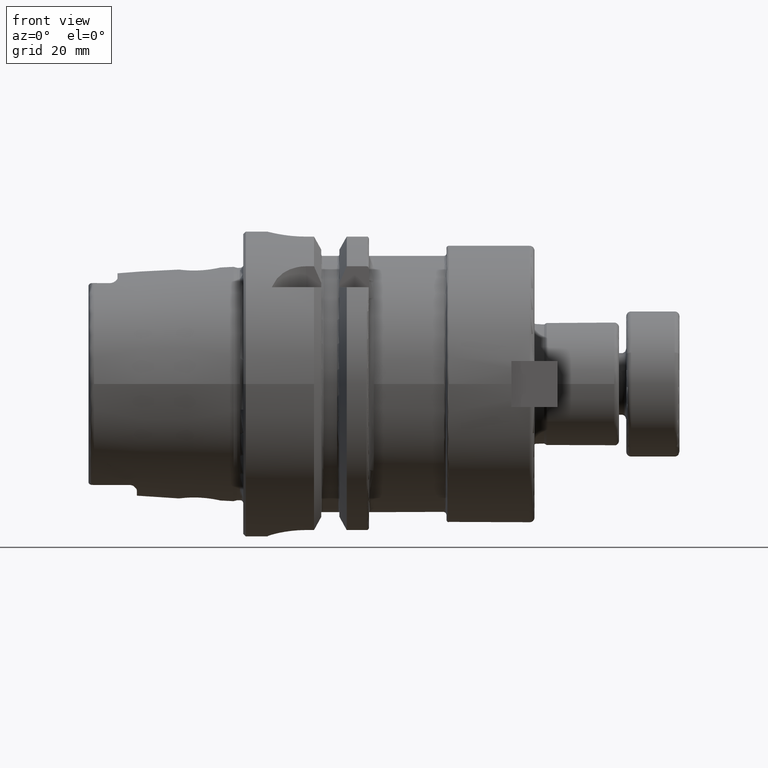
[diagram: clean part render]
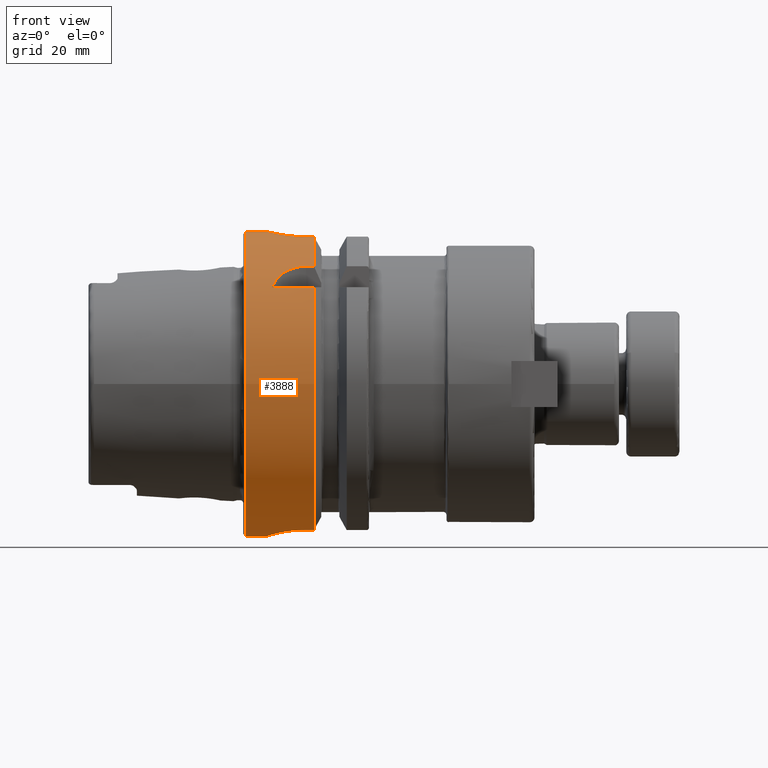
[diagram: same view with one face highlighted and labeled with its STEP entity id]
A machine part, front view. The second image highlights one B-rep face of the part: STEP entity #3888.
In plain terms, the highlighted cylindrical surface (bore or boss wall) has radius 31.5 mm, axis along (1, 0, 0).
Its self-contained STEP definition (entity closure, byte-faithful):
#632=FACE_BOUND('',#1289,.T.);
#676=CYLINDRICAL_SURFACE('',#4382,31.5);
#792=CIRCLE('',#4325,31.5);
#793=CIRCLE('',#4326,31.5);
#801=CIRCLE('',#4346,31.5);
#802=CIRCLE('',#4348,31.5);
#816=CIRCLE('',#4383,31.5);
#817=CIRCLE('',#4384,31.5);
#1077=FACE_OUTER_BOUND('',#1288,.T.);
#1288=EDGE_LOOP('',(#3283,#3284,#3285,#3286,#3287,#3288,#3289,#3290,#3291,
#3292,#3293,#3294,#3295,#3296,#3297,#3298,#3299,#3300));
#1289=EDGE_LOOP('',(#3301,#3302));
#1475=LINE('',#7105,#1676);
#1480=LINE('',#7150,#1681);
#1498=LINE('',#7327,#1699);
#1499=LINE('',#7331,#1700);
#1511=LINE('',#7494,#1712);
#1514=LINE('',#7524,#1715);
#1516=LINE('',#7530,#1717);
#1676=VECTOR('',#5072,10.);
#1681=VECTOR('',#5083,10.);
#1699=VECTOR('',#5147,10.);
#1700=VECTOR('',#5150,10.);
#1712=VECTOR('',#5228,10.);
#1715=VECTOR('',#5239,10.);
#1717=VECTOR('',#5247,31.5);
#1824=B_SPLINE_CURVE_WITH_KNOTS('',3,(#7038,#7039,#7040,#7041,#7042,#7043,
#7044,#7045,#7046,#7047,#7048,#7049,#7050,#7051,#7052,#7053,#7054,#7055,
#7056,#7057,#7058,#7059,#7060,#7061,#7062,#7063),.UNSPECIFIED.,.F.,.F.,
(4,2,2,2,2,2,2,2,2,2,2,2,4),(0.,0.188688694287612,0.377377388575223,0.56606194688798,
0.754746505200737,0.943431063513494,1.13211562182625,1.32080431611386,1.50949301040147,
1.69818170468909,1.8868703989767,2.07555495728945,2.26423951560221),
 .UNSPECIFIED.);
#1825=B_SPLINE_CURVE_WITH_KNOTS('',3,(#7064,#7065,#7066,#7067,#7068,#7069,
#7070,#7071,#7072,#7073),.UNSPECIFIED.,.F.,.F.,(4,2,2,2,4),(2.26423951560221,
2.45292407391497,2.64160863222773,2.83029732651534,3.01898602080295),
 .UNSPECIFIED.);
#1828=B_SPLINE_CURVE_WITH_KNOTS('',3,(#7130,#7131,#7132,#7133,#7134,#7135,
#7136,#7137,#7138,#7139,#7140,#7141),.UNSPECIFIED.,.F.,.F.,(4,2,2,2,2,4),
(1.1085154204615,1.31979218709236,1.52798350480179,1.73617482251122,1.90421770126337,
2.07226058001552),.UNSPECIFIED.);
#1838=B_SPLINE_CURVE_WITH_KNOTS('',3,(#7310,#7311,#7312,#7313,#7314,#7315,
#7316,#7317,#7318,#7319),.UNSPECIFIED.,.F.,.F.,(4,2,2,2,4),(1.20927420824097,
1.5131742975437,1.81707438684643,2.12000449915965,2.42293461147287),
 .UNSPECIFIED.);
#1841=B_SPLINE_CURVE_WITH_KNOTS('',3,(#7345,#7346,#7347,#7348,#7349,#7350,
#7351,#7352,#7353,#7354),.UNSPECIFIED.,.F.,.F.,(4,2,2,2,4),(0.,0.30293011231322,
0.605860224626439,0.90976031392917,1.2136604032319),.UNSPECIFIED.);
#1851=B_SPLINE_CURVE_WITH_KNOTS('',3,(#7500,#7501,#7502,#7503,#7504,#7505,
#7506,#7507,#7508,#7509,#7510,#7511,#7512,#7513,#7514,#7515,#7516,#7517),
 .UNSPECIFIED.,.F.,.F.,(4,2,2,2,2,2,2,2,4),(0.,0.302805879979318,0.605611759958635,
0.908372461246501,1.21113316253437,1.51389386382223,1.8166545651101,2.11946044508942,
2.42226632506874),.UNSPECIFIED.);
#2012=VERTEX_POINT('',#7035);
#2013=VERTEX_POINT('',#7037);
#2021=VERTEX_POINT('',#7102);
#2022=VERTEX_POINT('',#7104);
#2026=VERTEX_POINT('',#7129);
#2028=VERTEX_POINT('',#7146);
#2033=VERTEX_POINT('',#7162);
#2034=VERTEX_POINT('',#7164);
#2059=VERTEX_POINT('',#7308);
#2060=VERTEX_POINT('',#7309);
#2061=VERTEX_POINT('',#7329);
#2062=VERTEX_POINT('',#7330);
#2065=VERTEX_POINT('',#7344);
#2066=VERTEX_POINT('',#7359);
#2082=VERTEX_POINT('',#7491);
#2083=VERTEX_POINT('',#7493);
#2084=VERTEX_POINT('',#7499);
#2086=VERTEX_POINT('',#7529);
#2403=EDGE_CURVE('',#2013,#2012,#1824,.T.);
#2404=EDGE_CURVE('',#2012,#2013,#1825,.T.);
#2413=EDGE_CURVE('',#2022,#2021,#1475,.T.);
#2419=EDGE_CURVE('',#2021,#2026,#1828,.T.);
#2423=EDGE_CURVE('',#2026,#2028,#1480,.T.);
#2429=EDGE_CURVE('',#2022,#2033,#792,.T.);
#2430=EDGE_CURVE('',#2033,#2034,#793,.T.);
#2464=EDGE_CURVE('',#2059,#2060,#1838,.T.);
#2468=EDGE_CURVE('',#2060,#2034,#1498,.T.);
#2469=EDGE_CURVE('',#2061,#2062,#1499,.T.);
#2474=EDGE_CURVE('',#2062,#2065,#1841,.T.);
#2476=EDGE_CURVE('',#2065,#2059,#801,.T.);
#2477=EDGE_CURVE('',#2061,#2066,#802,.T.);
#2509=EDGE_CURVE('',#2083,#2082,#1511,.T.);
#2511=EDGE_CURVE('',#2082,#2084,#1851,.T.);
#2515=EDGE_CURVE('',#2084,#2066,#1514,.T.);
#2517=EDGE_CURVE('',#2083,#2028,#816,.T.);
#2518=EDGE_CURVE('',#2033,#2086,#1516,.T.);
#2519=EDGE_CURVE('',#2086,#2086,#817,.T.);
#3283=ORIENTED_EDGE('',*,*,#2423,.T.);
#3284=ORIENTED_EDGE('',*,*,#2517,.F.);
#3285=ORIENTED_EDGE('',*,*,#2509,.T.);
#3286=ORIENTED_EDGE('',*,*,#2511,.T.);
#3287=ORIENTED_EDGE('',*,*,#2515,.T.);
#3288=ORIENTED_EDGE('',*,*,#2477,.F.);
#3289=ORIENTED_EDGE('',*,*,#2469,.T.);
#3290=ORIENTED_EDGE('',*,*,#2474,.T.);
#3291=ORIENTED_EDGE('',*,*,#2476,.T.);
#3292=ORIENTED_EDGE('',*,*,#2464,.T.);
#3293=ORIENTED_EDGE('',*,*,#2468,.T.);
#3294=ORIENTED_EDGE('',*,*,#2430,.F.);
#3295=ORIENTED_EDGE('',*,*,#2518,.T.);
#3296=ORIENTED_EDGE('',*,*,#2519,.T.);
#3297=ORIENTED_EDGE('',*,*,#2518,.F.);
#3298=ORIENTED_EDGE('',*,*,#2429,.F.);
#3299=ORIENTED_EDGE('',*,*,#2413,.T.);
#3300=ORIENTED_EDGE('',*,*,#2419,.T.);
#3301=ORIENTED_EDGE('',*,*,#2403,.T.);
#3302=ORIENTED_EDGE('',*,*,#2404,.T.);
#3888=ADVANCED_FACE('',(#1077,#632),#676,.T.);
#4325=AXIS2_PLACEMENT_3D('',#7163,#5096,#5097);
#4326=AXIS2_PLACEMENT_3D('',#7165,#5098,#5099);
#4346=AXIS2_PLACEMENT_3D('',#7357,#5158,#5159);
#4348=AXIS2_PLACEMENT_3D('',#7360,#5162,#5163);
#4382=AXIS2_PLACEMENT_3D('',#7527,#5243,#5244);
#4383=AXIS2_PLACEMENT_3D('',#7528,#5245,#5246);
#4384=AXIS2_PLACEMENT_3D('',#7531,#5248,#5249);
#5072=DIRECTION('',(-1.,0.,0.));
#5083=DIRECTION('',(1.,0.,0.));
#5096=DIRECTION('center_axis',(1.,0.,0.));
#5097=DIRECTION('ref_axis',(0.,0.,-1.));
#5098=DIRECTION('center_axis',(1.,0.,0.));
#5099=DIRECTION('ref_axis',(0.,0.,-1.));
#5147=DIRECTION('',(1.,0.,0.));
#5150=DIRECTION('',(-1.,0.,0.));
#5158=DIRECTION('center_axis',(-1.,0.,0.));
#5159=DIRECTION('ref_axis',(0.,1.,0.));
#5162=DIRECTION('center_axis',(1.,0.,0.));
#5163=DIRECTION('ref_axis',(0.,0.,-1.));
#5228=DIRECTION('',(-1.,0.,0.));
#5239=DIRECTION('',(1.,0.,0.));
#5243=DIRECTION('center_axis',(1.,0.,0.));
#5244=DIRECTION('ref_axis',(0.,1.,0.));
#5245=DIRECTION('center_axis',(1.,0.,0.));
#5246=DIRECTION('ref_axis',(0.,0.,-1.));
#5247=DIRECTION('',(-1.,0.,0.));
#5248=DIRECTION('center_axis',(1.,0.,0.));
#5249=DIRECTION('ref_axis',(0.,0.,-1.));
#7035=CARTESIAN_POINT('',(12.,31.5,-6.12323399573677E-16));
#7037=CARTESIAN_POINT('',(7.,31.100643080168,5.));
#7038=CARTESIAN_POINT('Ctrl Pts',(7.,31.100643080168,5.));
#7039=CARTESIAN_POINT('Ctrl Pts',(6.37103768570796,31.100643080168,5.));
#7040=CARTESIAN_POINT('Ctrl Pts',(5.70089281579202,31.1216953112949,4.87408354368814));
#7041=CARTESIAN_POINT('Ctrl Pts',(4.46931934300962,31.1973810209855,4.36348784122736));
#7042=CARTESIAN_POINT('Ctrl Pts',(3.90779781350673,31.2508828501623,3.97886562537221));
#7043=CARTESIAN_POINT('Ctrl Pts',(3.021144092268,31.3510329557602,3.09221190413348));
#7044=CARTESIAN_POINT('Ctrl Pts',(2.63651425348544,31.4042391414288,2.5306861925578));
#7045=CARTESIAN_POINT('Ctrl Pts',(2.12591301120586,31.4792463697936,1.29909839144709));
#7046=CARTESIAN_POINT('Ctrl Pts',(2.,31.5,0.62894852770919));
#7047=CARTESIAN_POINT('Ctrl Pts',(2.,31.5,-0.62894852770919));
#7048=CARTESIAN_POINT('Ctrl Pts',(2.12591301120586,31.4792463697936,-1.29909839144709));
#7049=CARTESIAN_POINT('Ctrl Pts',(2.63651425348544,31.4042391414288,-2.5306861925578));
#7050=CARTESIAN_POINT('Ctrl Pts',(3.021144092268,31.3510329557602,-3.09221190413348));
#7051=CARTESIAN_POINT('Ctrl Pts',(3.90779781350673,31.2508828501623,-3.97886562537221));
#7052=CARTESIAN_POINT('Ctrl Pts',(4.46931934300962,31.1973810209855,-4.36348784122736));
#7053=CARTESIAN_POINT('Ctrl Pts',(5.70089281579202,31.1216953112949,-4.87408354368814));
#7054=CARTESIAN_POINT('Ctrl Pts',(6.37103768570796,31.100643080168,-5.));
#7055=CARTESIAN_POINT('Ctrl Pts',(7.62896231429204,31.100643080168,-5.));
#7056=CARTESIAN_POINT('Ctrl Pts',(8.29910718420798,31.1216953112949,-4.87408354368814));
#7057=CARTESIAN_POINT('Ctrl Pts',(9.53068065699038,31.1973810209855,-4.36348784122736));
#7058=CARTESIAN_POINT('Ctrl Pts',(10.0922021864933,31.2508828501623,-3.97886562537221));
#7059=CARTESIAN_POINT('Ctrl Pts',(10.978855907732,31.3510329557602,-3.09221190413348));
#7060=CARTESIAN_POINT('Ctrl Pts',(11.3634857465146,31.4042391414288,-2.53068619255779));
#7061=CARTESIAN_POINT('Ctrl Pts',(11.8740869887941,31.4792463697936,-1.29909839144708));
#7062=CARTESIAN_POINT('Ctrl Pts',(12.,31.5,-0.62894852770919));
#7063=CARTESIAN_POINT('Ctrl Pts',(12.,31.5,-4.16333634234434E-16));
#7064=CARTESIAN_POINT('Ctrl Pts',(12.,31.5,-1.11022302462516E-15));
#7065=CARTESIAN_POINT('Ctrl Pts',(12.,31.5,0.628948527709188));
#7066=CARTESIAN_POINT('Ctrl Pts',(11.8740869887941,31.4792463697936,1.29909839144708));
#7067=CARTESIAN_POINT('Ctrl Pts',(11.3634857465146,31.4042391414288,2.53068619255779));
#7068=CARTESIAN_POINT('Ctrl Pts',(10.978855907732,31.3510329557602,3.09221190413348));
#7069=CARTESIAN_POINT('Ctrl Pts',(10.0922021864933,31.2508828501623,3.97886562537221));
#7070=CARTESIAN_POINT('Ctrl Pts',(9.53068065699038,31.1973810209855,4.36348784122736));
#7071=CARTESIAN_POINT('Ctrl Pts',(8.29910718420798,31.1216953112949,4.87408354368814));
#7072=CARTESIAN_POINT('Ctrl Pts',(7.62896231429204,31.100643080168,5.));
#7073=CARTESIAN_POINT('Ctrl Pts',(7.,31.100643080168,5.));
#7102=CARTESIAN_POINT('',(5.88828609634419,-24.3361870472759,20.));
#7104=CARTESIAN_POINT('',(14.6225009252407,-24.3361870472759,20.));
#7105=CARTESIAN_POINT('',(7.56125046262034,-24.3361870472759,20.));
#7129=CARTESIAN_POINT('',(13.,-20.,24.3361870472759));
#7130=CARTESIAN_POINT('Ctrl Pts',(5.88828609634419,-24.3361870472759,20.));
#7131=CARTESIAN_POINT('Ctrl Pts',(6.11069532820048,-23.9044753723342,20.5253108035937));
#7132=CARTESIAN_POINT('Ctrl Pts',(6.38325999044306,-23.4713523250807,21.0173865932788));
#7133=CARTESIAN_POINT('Ctrl Pts',(7.044898076458,-22.6317364276543,21.9186738868096));
#7134=CARTESIAN_POINT('Ctrl Pts',(7.46714468561685,-22.1861072682036,22.3682920878559));
#7135=CARTESIAN_POINT('Ctrl Pts',(8.46725531403812,-21.3767026700071,23.143042657319));
#7136=CARTESIAN_POINT('Ctrl Pts',(9.04646427720221,-21.0147449478223,23.4683362269255));
#7137=CARTESIAN_POINT('Ctrl Pts',(10.1145001432702,-20.5200081116516,23.9011603796022));
#7138=CARTESIAN_POINT('Ctrl Pts',(10.670823971716,-20.3234249831704,24.0673462447194));
#7139=CARTESIAN_POINT('Ctrl Pts',(11.8334528721306,-20.063121855676,24.2847667849476));
#7140=CARTESIAN_POINT('Ctrl Pts',(12.4398570708262,-20.,24.3361870472759));
#7141=CARTESIAN_POINT('Ctrl Pts',(13.,-20.,24.3361870472759));
#7146=CARTESIAN_POINT('',(14.6225009252407,-20.,24.3361870472759));
#7150=CARTESIAN_POINT('',(7.56125046262035,-20.,24.3361870472759));
#7162=CARTESIAN_POINT('',(14.6225009252407,-31.5,-3.85763741731416E-15));
#7163=CARTESIAN_POINT('Origin',(14.6225009252407,0.,0.));
#7164=CARTESIAN_POINT('',(14.6225009252407,-9.,-30.1869176962472));
#7165=CARTESIAN_POINT('Origin',(14.6225009252407,0.,0.));
#7308=CARTESIAN_POINT('',(5.,-0.999999999999999,-31.4841229828623));
#7309=CARTESIAN_POINT('',(13.,-9.,-30.1869176962472));
#7310=CARTESIAN_POINT('Ctrl Pts',(5.,-0.999999999999997,-31.4841229828623));
#7311=CARTESIAN_POINT('Ctrl Pts',(5.,-2.01248971281587,-31.4519642432536));
#7312=CARTESIAN_POINT('Ctrl Pts',(5.2037733306458,-3.08756640398171,-31.3640631381934));
#7313=CARTESIAN_POINT('Ctrl Pts',(6.02370102555041,-5.05836608044729,-31.1070804719497));
#7314=CARTESIAN_POINT('Ctrl Pts',(6.63955745341062,-5.95454409907418,-30.9405445582004));
#7315=CARTESIAN_POINT('Ctrl Pts',(8.05472493283182,-7.36715009628369,-30.6348764237341));
#7316=CARTESIAN_POINT('Ctrl Pts',(8.9496642215883,-7.98063403850821,-30.4752177477269));
#7317=CARTESIAN_POINT('Ctrl Pts',(10.9171740660538,-8.79719825889174,-30.2496070227108));
#7318=CARTESIAN_POINT('Ctrl Pts',(11.9902329589559,-9.,-30.1869176962472));
#7319=CARTESIAN_POINT('Ctrl Pts',(13.,-9.,-30.1869176962472));
#7327=CARTESIAN_POINT('',(7.56125046262035,-8.99999999999999,-30.1869176962472));
#7329=CARTESIAN_POINT('',(14.6225009252407,9.,-30.1869176962472));
#7330=CARTESIAN_POINT('',(13.,9.00000000000001,-30.1869176962472));
#7331=CARTESIAN_POINT('',(7.56125046262034,9.00000000000001,-30.1869176962472));
#7344=CARTESIAN_POINT('',(5.,1.,-31.4841229828623));
#7345=CARTESIAN_POINT('Ctrl Pts',(13.,9.00000000000001,-30.1869176962472));
#7346=CARTESIAN_POINT('Ctrl Pts',(11.9902329589559,9.00000000000001,-30.1869176962472));
#7347=CARTESIAN_POINT('Ctrl Pts',(10.9171740660538,8.79719825889175,-30.2496070227108));
#7348=CARTESIAN_POINT('Ctrl Pts',(8.9496642215883,7.98063403850822,-30.4752177477269));
#7349=CARTESIAN_POINT('Ctrl Pts',(8.05472493283182,7.3671500962837,-30.6348764237341));
#7350=CARTESIAN_POINT('Ctrl Pts',(6.63955745341061,5.95454409907419,-30.9405445582004));
#7351=CARTESIAN_POINT('Ctrl Pts',(6.02370102555041,5.0583660804473,-31.1070804719497));
#7352=CARTESIAN_POINT('Ctrl Pts',(5.2037733306458,3.08756640398172,-31.3640631381934));
#7353=CARTESIAN_POINT('Ctrl Pts',(5.,2.01248971281588,-31.4519642432536));
#7354=CARTESIAN_POINT('Ctrl Pts',(5.,1.00000000000001,-31.4841229828623));
#7357=CARTESIAN_POINT('Origin',(5.,0.,0.));
#7359=CARTESIAN_POINT('',(14.6225009252407,8.,30.4671954731642));
#7360=CARTESIAN_POINT('Origin',(14.6225009252407,0.,0.));
#7491=CARTESIAN_POINT('',(13.,-8.,30.4671954731642));
#7493=CARTESIAN_POINT('',(14.6225009252407,-8.,30.4671954731642));
#7494=CARTESIAN_POINT('',(7.56125046262034,-8.,30.4671954731642));
#7499=CARTESIAN_POINT('',(13.,8.,30.4671954731642));
#7500=CARTESIAN_POINT('Ctrl Pts',(13.,-8.,30.4671954731643));
#7501=CARTESIAN_POINT('Ctrl Pts',(11.9906470667356,-8.,30.4671954731643));
#7502=CARTESIAN_POINT('Ctrl Pts',(10.9172075930168,-7.79737202490167,30.5225803085525));
#7503=CARTESIAN_POINT('Ctrl Pts',(8.94758399331801,-6.97961067526075,30.719895002943));
#7504=CARTESIAN_POINT('Ctrl Pts',(8.05099322370438,-6.36470172268915,30.8586830127239));
#7505=CARTESIAN_POINT('Ctrl Pts',(6.63540388828045,-4.94911238726521,31.1170994373341));
#7506=CARTESIAN_POINT('Ctrl Pts',(6.02041263015313,-4.05247770930662,31.2539072689014));
#7507=CARTESIAN_POINT('Ctrl Pts',(5.20259114887399,-2.08269813865027,31.4466478906396));
#7508=CARTESIAN_POINT('Ctrl Pts',(5.,-1.00920233762622,31.5));
#7509=CARTESIAN_POINT('Ctrl Pts',(5.,1.00920233762622,31.5));
#7510=CARTESIAN_POINT('Ctrl Pts',(5.20259114887399,2.08269813865027,31.4466478906396));
#7511=CARTESIAN_POINT('Ctrl Pts',(6.02041263015313,4.05247770930662,31.2539072689014));
#7512=CARTESIAN_POINT('Ctrl Pts',(6.63540388828045,4.94911238726521,31.1170994373341));
#7513=CARTESIAN_POINT('Ctrl Pts',(8.05099322370439,6.36470172268915,30.8586830127239));
#7514=CARTESIAN_POINT('Ctrl Pts',(8.94758399331801,6.97961067526075,30.719895002943));
#7515=CARTESIAN_POINT('Ctrl Pts',(10.9172075930168,7.79737202490167,30.5225803085525));
#7516=CARTESIAN_POINT('Ctrl Pts',(11.9906470667356,8.,30.4671954731643));
#7517=CARTESIAN_POINT('Ctrl Pts',(13.,8.,30.4671954731643));
#7524=CARTESIAN_POINT('',(7.56125046262035,8.,30.4671954731642));
#7527=CARTESIAN_POINT('Origin',(7.56125046262034,0.,0.));
#7528=CARTESIAN_POINT('Origin',(14.6225009252407,0.,0.));
#7529=CARTESIAN_POINT('',(0.5,-31.5,-3.85763741731416E-15));
#7530=CARTESIAN_POINT('',(7.56125046262034,-31.5,-3.85763741731416E-15));
#7531=CARTESIAN_POINT('Origin',(0.5,0.,0.));